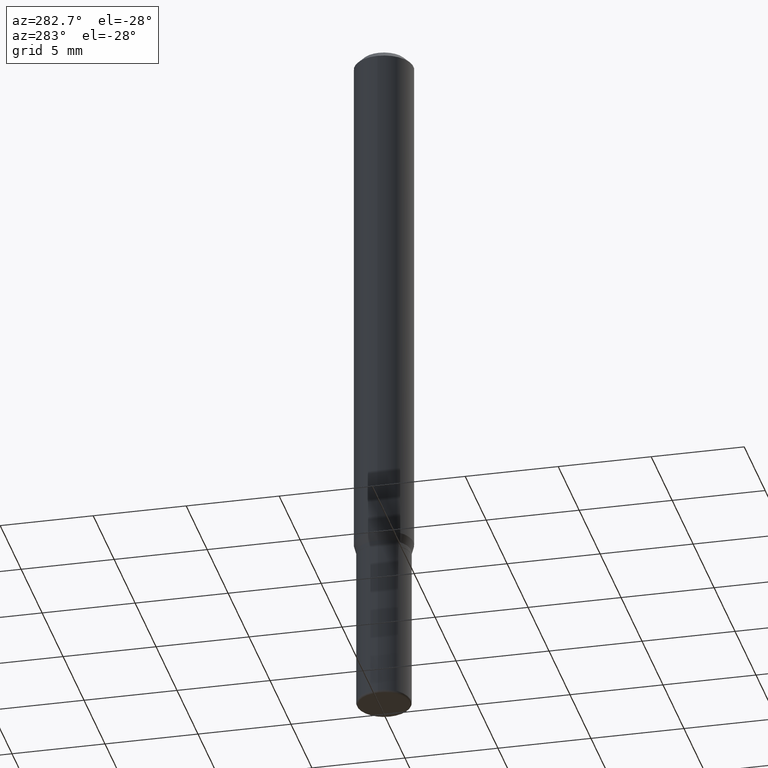
[diagram: clean part render]
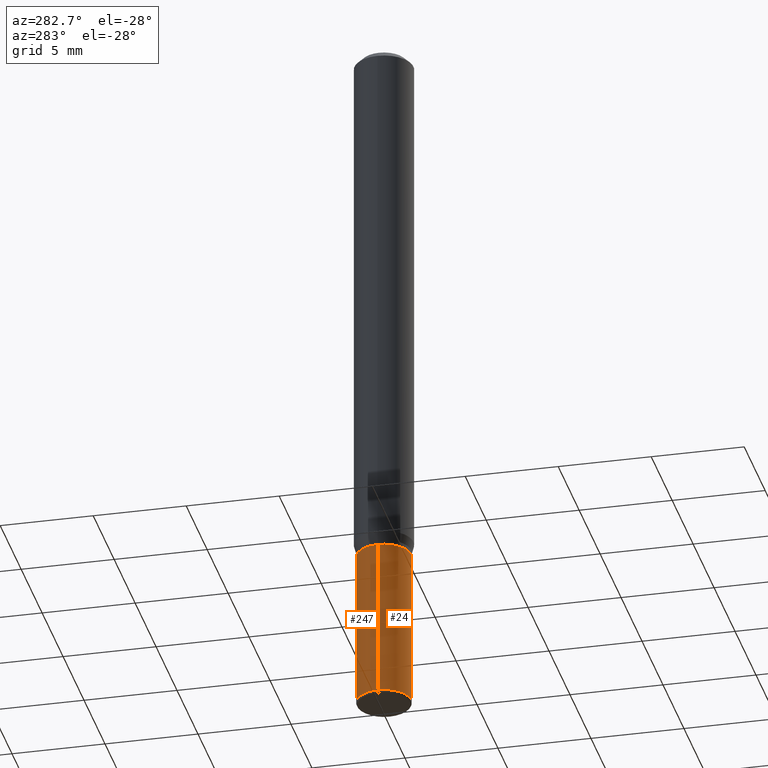
[diagram: same view with one multi-face feature highlighted, each face labeled with its STEP entity id]
A machine part, auxiliary view. The highlighted faces form ONE feature: a constant-radius fillet chain: 2 tangent blend faces with common blend radius 1.4605 mm. The faces share edges in the B-rep.
Their STEP definitions:
[1] entity #24 (Cylinder):
#1 = CARTESIAN_POINT ( 'NONE',  ( 0.05750000000000008576, -4.015203539669609078E-16, 2.803801646082667145E-30 ) ) ;
#24 = ADVANCED_FACE ( 'NONE', ( #179 ), #258, .T. ) ;
#27 = CARTESIAN_POINT ( 'NONE',  ( -0.05750000000000016903, -4.217650700905109109E-15, -1.495000000000000107 ) ) ;
#35 = VECTOR ( 'NONE', #208, 39.37007874015748143 ) ;
#36 = VECTOR ( 'NONE', #243, 39.37007874015748143 ) ;
#37 = CARTESIAN_POINT ( 'NONE',  ( -0.05750000000000000250, -4.217650700905109898E-15, -1.155000000000000027 ) ) ;
#40 = ORIENTED_EDGE ( 'NONE', *, *, #269, .T. ) ;
#54 = AXIS2_PLACEMENT_3D ( 'NONE', #425, #497, #141 ) ;
#79 = CARTESIAN_POINT ( 'NONE',  ( -0.05750000000000008576, 4.085620730620582163E-16, -2.828387676896575267E-30 ) ) ;
#108 = DIRECTION ( 'NONE',  ( 1.000000000000000000, -6.982962677686265922E-15, 4.876176775795935793E-29 ) ) ;
#141 = DIRECTION ( 'NONE',  ( 1.000000000000000000, -6.982962677686273810E-15, 0.000000000000000000 ) ) ;
#170 = CARTESIAN_POINT ( 'NONE',  ( 3.655975865246779122E-29, -5.219764601570503141E-15, -1.495000000000000107 ) ) ;
#173 = LINE ( 'NONE', #1, #35 ) ;
#174 = ORIENTED_EDGE ( 'NONE', *, *, #343, .T. ) ;
#176 = AXIS2_PLACEMENT_3D ( 'NONE', #374, #293, #108 ) ;
#177 = DIRECTION ( 'NONE',  ( -2.445468806185136597E-29, 3.491481338843145583E-15, 1.000000000000000000 ) ) ;
#179 = FACE_OUTER_BOUND ( 'NONE', #210, .T. ) ;
#193 = EDGE_CURVE ( 'NONE', #196, #207, #230, .T. ) ;
#196 = VERTEX_POINT ( 'NONE', #27 ) ;
#207 = VERTEX_POINT ( 'NONE', #37 ) ;
#208 = DIRECTION ( 'NONE',  ( -2.445468806185136877E-29, 3.491481338843145188E-15, 1.000000000000000000 ) ) ;
#210 = EDGE_LOOP ( 'NONE', ( #331, #40, #174, #369 ) ) ;
#230 = LINE ( 'NONE', #79, #36 ) ;
#243 = DIRECTION ( 'NONE',  ( -2.445468806185136877E-29, 3.491481338843145188E-15, 1.000000000000000000 ) ) ;
#244 = VERTEX_POINT ( 'NONE', #276 ) ;
#258 = CYLINDRICAL_SURFACE ( 'NONE', #176, 0.05750000000000008576 ) ;
#269 = EDGE_CURVE ( 'NONE', #196, #244, #311, .T. ) ;
#276 = CARTESIAN_POINT ( 'NONE',  ( 0.05750000000000018291, -5.621284955537464739E-15, -1.495000000000000107 ) ) ;
#293 = DIRECTION ( 'NONE',  ( -2.445468806185136597E-29, 3.491481338843145583E-15, 1.000000000000000000 ) ) ;
#311 = CIRCLE ( 'NONE', #385, 0.05750000000000018291 ) ;
#327 = CARTESIAN_POINT ( 'NONE',  ( 0.05750000000000000250, -4.434181300330794192E-15, -1.155000000000000027 ) ) ;
#331 = ORIENTED_EDGE ( 'NONE', *, *, #193, .F. ) ;
#343 = EDGE_CURVE ( 'NONE', #244, #364, #173, .T. ) ;
#364 = VERTEX_POINT ( 'NONE', #327 ) ;
#369 = ORIENTED_EDGE ( 'NONE', *, *, #487, .F. ) ;
#374 = CARTESIAN_POINT ( 'NONE',  ( 0.000000000000000000, 0.000000000000000000, 0.000000000000000000 ) ) ;
#385 = AXIS2_PLACEMENT_3D ( 'NONE', #170, #177, #412 ) ;
#412 = DIRECTION ( 'NONE',  ( 1.000000000000000000, -6.982962677686268288E-15, 0.000000000000000000 ) ) ;
#425 = CARTESIAN_POINT ( 'NONE',  ( 2.824516471143833307E-29, -4.032660946363833383E-15, -1.155000000000000027 ) ) ;
#487 = EDGE_CURVE ( 'NONE', #207, #364, #496, .T. ) ;
#496 = CIRCLE ( 'NONE', #54, 0.05750000000000000250 ) ;
#497 = DIRECTION ( 'NONE',  ( -2.445468806185136597E-29, 3.491481338843145583E-15, 1.000000000000000000 ) ) ;
[2] entity #247 (Cylinder):
#1 = CARTESIAN_POINT ( 'NONE',  ( 0.05750000000000008576, -4.015203539669609078E-16, 2.803801646082667145E-30 ) ) ;
#7 = ORIENTED_EDGE ( 'NONE', *, *, #343, .F. ) ;
#27 = CARTESIAN_POINT ( 'NONE',  ( -0.05750000000000016903, -4.217650700905109109E-15, -1.495000000000000107 ) ) ;
#35 = VECTOR ( 'NONE', #208, 39.37007874015748143 ) ;
#36 = VECTOR ( 'NONE', #243, 39.37007874015748143 ) ;
#37 = CARTESIAN_POINT ( 'NONE',  ( -0.05750000000000000250, -4.217650700905109898E-15, -1.155000000000000027 ) ) ;
#55 = CIRCLE ( 'NONE', #185, 0.05750000000000000250 ) ;
#60 = EDGE_CURVE ( 'NONE', #364, #207, #55, .T. ) ;
#72 = FACE_OUTER_BOUND ( 'NONE', #319, .T. ) ;
#79 = CARTESIAN_POINT ( 'NONE',  ( -0.05750000000000008576, 4.085620730620582163E-16, -2.828387676896575267E-30 ) ) ;
#157 = AXIS2_PLACEMENT_3D ( 'NONE', #162, #271, #471 ) ;
#158 = EDGE_CURVE ( 'NONE', #244, #196, #464, .T. ) ;
#162 = CARTESIAN_POINT ( 'NONE',  ( 3.655975865246779122E-29, -5.219764601570503141E-15, -1.495000000000000107 ) ) ;
#166 = ORIENTED_EDGE ( 'NONE', *, *, #158, .T. ) ;
#173 = LINE ( 'NONE', #1, #35 ) ;
#185 = AXIS2_PLACEMENT_3D ( 'NONE', #254, #419, #423 ) ;
#193 = EDGE_CURVE ( 'NONE', #196, #207, #230, .T. ) ;
#196 = VERTEX_POINT ( 'NONE', #27 ) ;
#198 = DIRECTION ( 'NONE',  ( -2.445468806185136597E-29, 3.491481338843145583E-15, 1.000000000000000000 ) ) ;
#207 = VERTEX_POINT ( 'NONE', #37 ) ;
#208 = DIRECTION ( 'NONE',  ( -2.445468806185136877E-29, 3.491481338843145188E-15, 1.000000000000000000 ) ) ;
#230 = LINE ( 'NONE', #79, #36 ) ;
#236 = CYLINDRICAL_SURFACE ( 'NONE', #250, 0.05750000000000008576 ) ;
#243 = DIRECTION ( 'NONE',  ( -2.445468806185136877E-29, 3.491481338843145188E-15, 1.000000000000000000 ) ) ;
#244 = VERTEX_POINT ( 'NONE', #276 ) ;
#247 = ADVANCED_FACE ( 'NONE', ( #72 ), #236, .T. ) ;
#248 = DIRECTION ( 'NONE',  ( 1.000000000000000000, -6.982962677686265922E-15, 4.876176775795935793E-29 ) ) ;
#250 = AXIS2_PLACEMENT_3D ( 'NONE', #507, #198, #248 ) ;
#254 = CARTESIAN_POINT ( 'NONE',  ( 2.824516471143833307E-29, -4.032660946363833383E-15, -1.155000000000000027 ) ) ;
#271 = DIRECTION ( 'NONE',  ( -2.445468806185136597E-29, 3.491481338843145583E-15, 1.000000000000000000 ) ) ;
#276 = CARTESIAN_POINT ( 'NONE',  ( 0.05750000000000018291, -5.621284955537464739E-15, -1.495000000000000107 ) ) ;
#297 = ORIENTED_EDGE ( 'NONE', *, *, #60, .F. ) ;
#319 = EDGE_LOOP ( 'NONE', ( #166, #407, #297, #7 ) ) ;
#327 = CARTESIAN_POINT ( 'NONE',  ( 0.05750000000000000250, -4.434181300330794192E-15, -1.155000000000000027 ) ) ;
#343 = EDGE_CURVE ( 'NONE', #244, #364, #173, .T. ) ;
#364 = VERTEX_POINT ( 'NONE', #327 ) ;
#407 = ORIENTED_EDGE ( 'NONE', *, *, #193, .T. ) ;
#419 = DIRECTION ( 'NONE',  ( -2.445468806185136597E-29, 3.491481338843145583E-15, 1.000000000000000000 ) ) ;
#423 = DIRECTION ( 'NONE',  ( 1.000000000000000000, -6.982962677686273810E-15, 0.000000000000000000 ) ) ;
#464 = CIRCLE ( 'NONE', #157, 0.05750000000000018291 ) ;
#471 = DIRECTION ( 'NONE',  ( 1.000000000000000000, -6.982962677686268288E-15, 0.000000000000000000 ) ) ;
#507 = CARTESIAN_POINT ( 'NONE',  ( 0.000000000000000000, 0.000000000000000000, 0.000000000000000000 ) ) ;